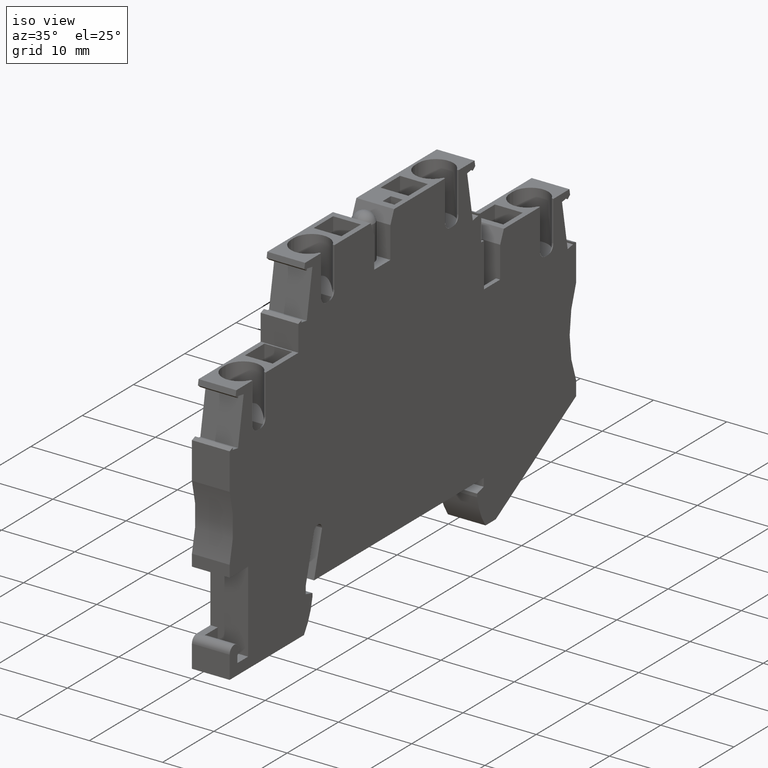
[diagram: clean part render]
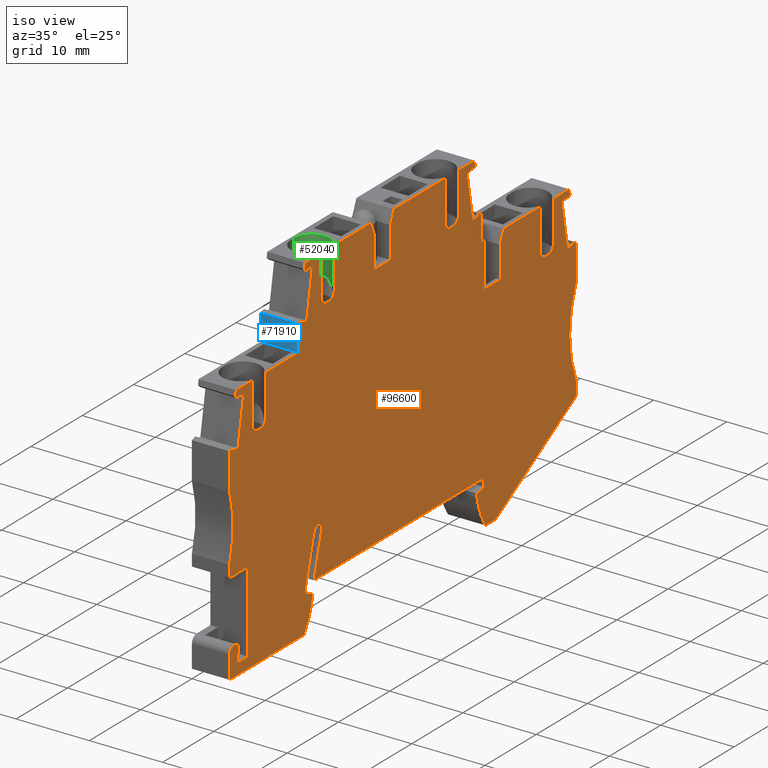
[diagram: same view with three faces highlighted in distinct colors, each labeled with its STEP entity id]
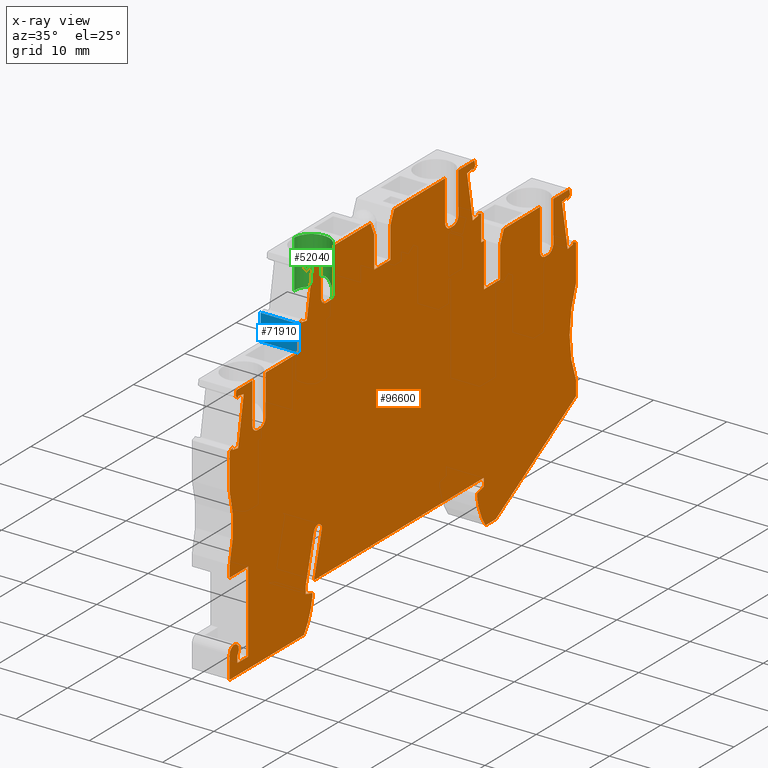
[diagram: x-ray of the same camera — body ghosted, the three highlighted faces saturated]
A machine part, iso view with three faces highlighted in distinct colors.
The next image is the same camera in x-ray (body ghosted, the three faces saturated) — at least one of them is partly hidden behind the body in this view.
Their STEP definitions:

[orange] entity #96600 — the highlighted planar face has unit normal (1, 0, 0).
#6490=CARTESIAN_POINT('',(184.918635451675,25.7467138221752,53.67));
#6500=VERTEX_POINT('',#6490);
#6530=CARTESIAN_POINT('',(184.918635451675,-15.1764489999999,53.67));
#6540=DIRECTION('',(2.692290834716E-15,-1.,0.));
#6550=VECTOR('',#6540,1.);
#6560=LINE('',#6530,#6550);
#6570=CARTESIAN_POINT('',(184.918635451675,31.7467138221735,53.67));
#6580=VERTEX_POINT('',#6570);
#6590=EDGE_CURVE('',#6580,#6500,#6560,.T.);
#9760=CARTESIAN_POINT('',(197.443635451696,25.2467138221744,53.67));
#9770=VERTEX_POINT('',#9760);
#11160=CARTESIAN_POINT('',(196.843635451697,25.2467138221758,53.67));
#11170=VERTEX_POINT('',#11160);
#17270=CARTESIAN_POINT('',(195.843635451697,31.746713822173,53.67));
#17280=VERTEX_POINT('',#17270);
#17360=CARTESIAN_POINT('',(195.843635451698,26.2467138221757,53.67));
#17370=VERTEX_POINT('',#17360);
#17400=CARTESIAN_POINT('',(195.8436354517,2.99671382217021,
53.6700000000001));
#17410=DIRECTION('',(-1.17239551400417E-13,1.,2.77555756285536E-17));
#17420=VECTOR('',#17410,1.);
#17430=LINE('',#17400,#17420);
#17440=EDGE_CURVE('',#17370,#17280,#17430,.T.);
#17990=CARTESIAN_POINT('',(14.196323,-44.3347945523262,53.67));
#18000=DIRECTION('',(0.965925826289086,0.258819045102457,0.));
#18010=VECTOR('',#18000,1.);
#18020=LINE('',#17990,#18010);
#18030=CARTESIAN_POINT('',(183.568635760428,1.04837987200994,53.67));
#18040=VERTEX_POINT('',#18030);
#18050=CARTESIAN_POINT('',(184.868635760428,1.39671382217034,53.67));
#18060=VERTEX_POINT('',#18050);
#18070=EDGE_CURVE('',#18040,#18060,#18020,.T.);
#18370=CARTESIAN_POINT('',(184.868635760428,-15.1764489999999,53.67));
#18380=DIRECTION('',(6.93889390390723E-17,1.,0.));
#18390=VECTOR('',#18380,1.);
#18400=LINE('',#18370,#18390);
#18410=CARTESIAN_POINT('',(184.868635760428,2.49671382217025,53.67));
#18420=VERTEX_POINT('',#18410);
#18430=EDGE_CURVE('',#18060,#18420,#18400,.T.);
#18680=CARTESIAN_POINT('',(14.196323,2.49671382217026,53.67));
#18690=DIRECTION('',(-1.,6.93889390390723E-17,0.));
#18700=VECTOR('',#18690,1.);
#18710=LINE('',#18680,#18700);
#18720=CARTESIAN_POINT('',(151.768635760428,2.49671382217025,53.67));
#18730=VERTEX_POINT('',#18720);
#18740=EDGE_CURVE('',#18420,#18730,#18710,.T.);
#18990=CARTESIAN_POINT('',(183.568635760417,-15.1764489999999,53.67));
#19000=DIRECTION('',(6.90295043348499E-13,1.,0.));
#19010=VECTOR('',#19000,1.);
#19020=LINE('',#18990,#19010);
#19030=CARTESIAN_POINT('',(183.568635760428,0.596713822169844,53.67));
#19040=VERTEX_POINT('',#19030);
#19050=EDGE_CURVE('',#19040,#18040,#19020,.T.);
#19300=CARTESIAN_POINT('',(192.962608439804,2.01208561046785,53.67));
#19310=DIRECTION('',(0.,0.,-1.));
#19320=DIRECTION('',(-1.,6.93889390390723E-17,0.));
#19330=AXIS2_PLACEMENT_3D('',#19300,#19310,#19320);
#19340=CIRCLE('',#19330,9.499999999999);
#19350=CARTESIAN_POINT('',(185.22757941356,-3.50328617782974,53.67));
#19360=VERTEX_POINT('',#19350);
#19370=EDGE_CURVE('',#19360,#19040,#19340,.T.);
#19620=CARTESIAN_POINT('',(14.196323,-3.50328617781982,53.67));
#19630=DIRECTION('',(-1.,5.79813974610488E-14,0.));
#19640=VECTOR('',#19630,1.);
#19650=LINE('',#19620,#19640);
#19660=CARTESIAN_POINT('',(187.212776734527,-3.50328617782985,53.67));
#19670=VERTEX_POINT('',#19660);
#19680=EDGE_CURVE('',#19670,#19360,#19650,.T.);
#19930=CARTESIAN_POINT('',(14.196323,-105.174575611719,53.67));
#19940=DIRECTION('',(-0.862158641431198,-0.5066384085376,0.));
#19950=VECTOR('',#19940,1.);
#19960=LINE('',#19930,#19950);
#19970=CARTESIAN_POINT('',(202.868635760428,5.69671382217545,53.67));
#19980=VERTEX_POINT('',#19970);
#19990=EDGE_CURVE('',#19980,#19670,#19960,.T.);
#20240=CARTESIAN_POINT('',(202.868635760428,-15.1764489999999,53.67));
#20250=DIRECTION('',(-1.3062127899644E-16,-1.,0.));
#20260=VECTOR('',#20250,1.);
#20270=LINE('',#20240,#20260);
#20280=CARTESIAN_POINT('',(202.868635760428,7.69671382216893,53.67));
#20290=VERTEX_POINT('',#20280);
#20300=EDGE_CURVE('',#20290,#19980,#20270,.T.);
#20550=CARTESIAN_POINT('',(216.616362845295,13.696713822169,53.67));
#20560=DIRECTION('',(0.,0.,1.));
#20570=DIRECTION('',(1.,-6.93889390390723E-17,0.));
#20580=AXIS2_PLACEMENT_3D('',#20550,#20560,#20570);
#20590=CIRCLE('',#20580,15.);
#20600=CARTESIAN_POINT('',(202.86863574573,19.6967137884929,53.67));
#20610=VERTEX_POINT('',#20600);
#20620=EDGE_CURVE('',#20610,#20290,#20590,.T.);
#20870=CARTESIAN_POINT('',(202.86863574573,-15.1764489999999,53.67));
#20880=DIRECTION('',(-6.93889390390723E-17,-1.,0.));
#20890=VECTOR('',#20880,1.);
#20900=LINE('',#20870,#20890);
#20910=CARTESIAN_POINT('',(202.86863574573,24.7030731418167,53.67));
#20920=VERTEX_POINT('',#20910);
#20930=EDGE_CURVE('',#20920,#20610,#20900,.T.);
#21180=CARTESIAN_POINT('',(14.196323,93.3741790099297,53.67));
#21190=DIRECTION('',(0.939692620788304,-0.342020143319087,0.));
#21200=VECTOR('',#21190,1.);
#21210=LINE('',#21180,#21200);
#21220=CARTESIAN_POINT('',(202.235827724333,24.9333964256054,53.67));
#21230=VERTEX_POINT('',#21220);
#21240=EDGE_CURVE('',#21230,#20920,#21210,.T.);
#21490=CARTESIAN_POINT('',(209.308275664955,-15.1764489999999,53.67));
#21500=DIRECTION('',(0.173648177667931,-0.984807753012032,0.));
#21510=VECTOR('',#21500,1.);
#21520=LINE('',#21490,#21510);
#21530=CARTESIAN_POINT('',(202.283113446507,24.6652257691104,53.67));
#21540=VERTEX_POINT('',#21530);
#21550=EDGE_CURVE('',#21230,#21540,#21520,.T.);
#21800=CARTESIAN_POINT('',(14.196323,-8.49955010156946,53.67));
#21810=DIRECTION('',(-0.984807753012117,-0.173648177667446,0.));
#21820=VECTOR('',#21810,1.);
#21830=LINE('',#21800,#21820);
#21840=CARTESIAN_POINT('',(201.229369150783,24.479422219006,53.67));
#21850=VERTEX_POINT('',#21840);
#21860=EDGE_CURVE('',#21540,#21850,#21830,.T.);
#22110=CARTESIAN_POINT('',(208.221769190198,-15.1764489999999,53.67));
#22120=DIRECTION('',(0.17364817766702,-0.984807753012192,0.));
#22130=VECTOR('',#22120,1.);
#22140=LINE('',#22110,#22130);
#22150=CARTESIAN_POINT('',(200.131044427039,30.7083312568086,53.67));
#22160=VERTEX_POINT('',#22150);
#22170=EDGE_CURVE('',#22160,#21850,#22140,.T.);
#22420=CARTESIAN_POINT('',(209.308275664883,-15.1764489999999,53.67));
#22430=DIRECTION('',(0.173648177666326,-0.984807753012315,0.));
#22440=VECTOR('',#22430,1.);
#22450=LINE('',#22420,#22440);
#22460=CARTESIAN_POINT('',(201.184788722763,30.8941348069122,53.67));
#22470=VERTEX_POINT('',#22460);
#22480=CARTESIAN_POINT('',(201.232074444938,30.625964150414,53.67));
#22490=VERTEX_POINT('',#22480);
#22500=EDGE_CURVE('',#22470,#22490,#22450,.T.);
#22800=CARTESIAN_POINT('',(14.196323,-2.07697678126756,53.67));
#22810=DIRECTION('',(0.984807753012229,0.173648177666812,0.));
#22820=VECTOR('',#22810,1.);
#22830=LINE('',#22800,#22820);
#22840=EDGE_CURVE('',#22160,#22470,#22830,.T.);
#23040=CARTESIAN_POINT('',(14.196323,-126.315665903762,53.67));
#23050=DIRECTION('',(-0.766044443119454,-0.642787609685972,0.));
#23060=VECTOR('',#23050,1.);
#23070=LINE('',#23040,#23060);
#23080=CARTESIAN_POINT('',(201.70088696831,31.0193445658665,53.67));
#23090=VERTEX_POINT('',#23080);
#23100=EDGE_CURVE('',#23090,#22490,#23070,.T.);
#23350=CARTESIAN_POINT('',(209.846451769164,-15.1764489999999,53.67));
#23360=DIRECTION('',(0.173648177665959,-0.984807753012379,0.));
#23370=VECTOR('',#23360,1.);
#23380=LINE('',#23350,#23370);
#23390=CARTESIAN_POINT('',(201.572632143486,31.7467138221736,53.67));
#23400=VERTEX_POINT('',#23390);
#23410=EDGE_CURVE('',#23400,#23090,#23380,.T.);
#24000=CARTESIAN_POINT('',(14.196323,31.7467138221519,53.67));
#24010=DIRECTION('',(1.,1.15435438985401E-13,0.));
#24020=VECTOR('',#24010,1.);
#24030=LINE('',#24000,#24020);
#24040=CARTESIAN_POINT('',(198.443635451697,31.746713822173,53.67));
#24050=VERTEX_POINT('',#24040);
#24060=EDGE_CURVE('',#24050,#23400,#24030,.T.);
#24330=CARTESIAN_POINT('',(188.787135479711,31.7467138221721,53.67));
#24340=VERTEX_POINT('',#24330);
#24350=EDGE_CURVE('',#24340,#17280,#24030,.T.);
#26030=CARTESIAN_POINT('',(168.955206470576,-15.1764489999999,53.67));
#26040=DIRECTION('',(-0.389303997086923,-0.921109330021222,0.));
#26050=VECTOR('',#26040,1.);
#26060=LINE('',#26030,#26050);
#26070=CARTESIAN_POINT('',(188.068635451695,30.0467130916932,53.67));
#26080=VERTEX_POINT('',#26070);
#26090=EDGE_CURVE('',#24340,#26080,#26060,.T.);
#26340=CARTESIAN_POINT('',(188.068635451695,-15.1764489999999,53.67));
#26350=DIRECTION('',(-9.18709552877317E-15,1.,0.));
#26360=VECTOR('',#26350,1.);
#26370=LINE('',#26340,#26360);
#26380=CARTESIAN_POINT('',(188.068635451695,25.7467138221752,53.67));
#26390=VERTEX_POINT('',#26380);
#26400=EDGE_CURVE('',#26390,#26080,#26370,.T.);
#26840=CARTESIAN_POINT('',(168.644442103639,25.2467138221718,53.67));
#26850=DIRECTION('',(1.,8.9848551017661E-14,0.));
#26860=VECTOR('',#26850,1.);
#26870=LINE('',#26840,#26860);
#26880=EDGE_CURVE('',#11170,#9770,#26870,.T.);
#27650=CARTESIAN_POINT('',(178.94363545168,35.8467138221694,53.67));
#27660=VERTEX_POINT('',#27650);
#28950=CARTESIAN_POINT('',(179.943635451681,2.99671382217021,53.67));
#28960=DIRECTION('',(-7.24420523566576E-15,1.,0.));
#28970=VECTOR('',#28960,1.);
#28980=LINE('',#28950,#28970);
#28990=CARTESIAN_POINT('',(179.943635451681,36.8467138221695,
53.6699999999999));
#29000=VERTEX_POINT('',#28990);
#29010=CARTESIAN_POINT('',(179.94363545168,42.3467138221667,53.67));
#29020=VERTEX_POINT('',#29010);
#29030=EDGE_CURVE('',#29000,#29020,#28980,.T.);
#29300=CARTESIAN_POINT('',(178.943635451681,36.8467138221681,53.67));
#29310=DIRECTION('',(-1.15352172258554E-13,2.7755575615018E-17,-1.));
#29320=DIRECTION('',(-1.,1.09995346164751E-13,1.15352172258554E-13));
#29330=AXIS2_PLACEMENT_3D('',#29300,#29310,#29320);
#29340=CIRCLE('',#29330,1.);
#29350=EDGE_CURVE('',#29000,#27660,#29340,.T.);
#30430=CARTESIAN_POINT('',(178.34363545168,35.8467138221694,53.67));
#30440=VERTEX_POINT('',#30430);
#39650=CARTESIAN_POINT('',(168.644442103639,35.8467138221671,53.67));
#39660=DIRECTION('',(1.,8.9848551017661E-14,0.));
#39670=VECTOR('',#39660,1.);
#39680=LINE('',#39650,#39670);
#39690=EDGE_CURVE('',#30440,#27660,#39680,.T.);
#39930=CARTESIAN_POINT('',(177.34363545168,42.3467138221667,53.67));
#39940=VERTEX_POINT('',#39930);
#40020=CARTESIAN_POINT('',(177.343635451681,36.8467138221693,53.67));
#40030=VERTEX_POINT('',#40020);
#40060=CARTESIAN_POINT('',(177.343635451685,2.99671382217021,
53.6700000000001));
#40070=DIRECTION('',(-1.17239551400417E-13,1.,2.77555756285536E-17));
#40080=VECTOR('',#40070,1.);
#40090=LINE('',#40060,#40080);
#40100=EDGE_CURVE('',#40030,#39940,#40090,.T.);
#40220=CARTESIAN_POINT('',(178.343635451681,36.8467138221694,53.67));
#40230=DIRECTION('',(0.,0.,1.));
#40240=DIRECTION('',(1.,0.,0.));
#40250=AXIS2_PLACEMENT_3D('',#40220,#40230,#40240);
#40260=CIRCLE('',#40250,1.);
#40270=EDGE_CURVE('',#40030,#30440,#40260,.T.);
#41170=CARTESIAN_POINT('',(193.215517764735,-15.1764489999999,53.67));
#41180=DIRECTION('',(0.173648177667472,-0.984807753012113,0.));
#41190=VECTOR('',#41180,1.);
#41200=LINE('',#41170,#41190);
#41210=CARTESIAN_POINT('',(183.072632143469,42.3467138221672,53.67));
#41220=VERTEX_POINT('',#41210);
#41230=CARTESIAN_POINT('',(183.200886968294,41.6193445658591,53.67));
#41240=VERTEX_POINT('',#41230);
#41250=EDGE_CURVE('',#41220,#41240,#41200,.T.);
#41550=CARTESIAN_POINT('',(192.677341660368,-15.1764489999999,53.67));
#41560=DIRECTION('',(0.173648177666326,-0.984807753012315,0.));
#41570=VECTOR('',#41560,1.);
#41580=LINE('',#41550,#41570);
#41590=CARTESIAN_POINT('',(182.684788722746,41.4941348069045,53.67));
#41600=VERTEX_POINT('',#41590);
#41610=CARTESIAN_POINT('',(182.732074444921,41.2259641504061,53.67));
#41620=VERTEX_POINT('',#41610);
#41630=EDGE_CURVE('',#41600,#41620,#41580,.T.);
#41930=CARTESIAN_POINT('',(191.590835185692,-15.1764489999999,53.67));
#41940=DIRECTION('',(0.173648177667046,-0.984807753012188,0.));
#41950=VECTOR('',#41940,1.);
#41960=LINE('',#41930,#41950);
#41970=CARTESIAN_POINT('',(181.631044427023,41.3083312568009,53.67));
#41980=VERTEX_POINT('',#41970);
#41990=CARTESIAN_POINT('',(182.729369150767,35.0794222189983,53.67));
#42000=VERTEX_POINT('',#41990);
#42010=EDGE_CURVE('',#41980,#42000,#41960,.T.);
#42310=CARTESIAN_POINT('',(14.196323,97.240729676124,53.67));
#42320=DIRECTION('',(0.939692620788329,-0.342020143319018,0.));
#42330=VECTOR('',#42320,1.);
#42340=LINE('',#42310,#42330);
#42350=CARTESIAN_POINT('',(183.735827724316,35.5333964255976,53.67));
#42360=VERTEX_POINT('',#42350);
#42370=CARTESIAN_POINT('',(184.368635726432,35.3030731488271,53.67));
#42380=VERTEX_POINT('',#42370);
#42390=EDGE_CURVE('',#42360,#42380,#42340,.T.);
#42690=CARTESIAN_POINT('',(184.368635726432,31.7467138221735,53.67));
#42700=DIRECTION('',(1.,0.,0.));
#42710=VECTOR('',#42700,1.);
#42720=LINE('',#42690,#42710);
#42730=CARTESIAN_POINT('',(184.368635726432,31.7467138221735,53.67));
#42740=VERTEX_POINT('',#42730);
#42750=EDGE_CURVE('',#42740,#6580,#42720,.T.);
#43000=CARTESIAN_POINT('',(184.368635726432,-15.1764489999999,53.67));
#43010=DIRECTION('',(-5.46784839627889E-15,1.,0.));
#43020=VECTOR('',#43010,1.);
#43030=LINE('',#43000,#43020);
#43040=EDGE_CURVE('',#42740,#42380,#43030,.T.);
#43240=CARTESIAN_POINT('',(192.677341660458,-15.1764489999999,53.67));
#43250=DIRECTION('',(0.173648177667931,-0.984807753012032,0.));
#43260=VECTOR('',#43250,1.);
#43270=LINE('',#43240,#43260);
#43280=CARTESIAN_POINT('',(183.783113446491,35.2652257691028,53.67));
#43290=VERTEX_POINT('',#43280);
#43300=EDGE_CURVE('',#42360,#43290,#43270,.T.);
#43550=CARTESIAN_POINT('',(14.196323,5.36249904154229,53.67));
#43560=DIRECTION('',(-0.984807753012117,-0.173648177667446,0.));
#43570=VECTOR('',#43560,1.);
#43580=LINE('',#43550,#43570);
#43590=EDGE_CURVE('',#43290,#42000,#43580,.T.);
#43790=CARTESIAN_POINT('',(14.196323,11.7850723618319,53.67));
#43800=DIRECTION('',(0.984807753012229,0.173648177666812,0.));
#43810=VECTOR('',#43800,1.);
#43820=LINE('',#43790,#43810);
#43830=EDGE_CURVE('',#41980,#41600,#43820,.T.);
#44030=CARTESIAN_POINT('',(14.196323,-100.192322726944,53.67));
#44040=DIRECTION('',(-0.76604444311958,-0.642787609685822,0.));
#44050=VECTOR('',#44040,1.);
#44060=LINE('',#44030,#44050);
#44070=EDGE_CURVE('',#41240,#41620,#44060,.T.);
#44950=CARTESIAN_POINT('',(14.196323,42.3467138221477,53.67));
#44960=DIRECTION('',(-1.,-1.15435438985401E-13,0.));
#44970=VECTOR('',#44960,1.);
#44980=LINE('',#44950,#44970);
#44990=EDGE_CURVE('',#41220,#29020,#44980,.T.);
#45060=CARTESIAN_POINT('',(167.387135170976,42.3467138221654,53.67));
#45070=VERTEX_POINT('',#45060);
#45080=EDGE_CURVE('',#39940,#45070,#44980,.T.);
#48190=CARTESIAN_POINT('',(143.075149088678,-15.1764489999999,53.67));
#48200=DIRECTION('',(-0.389303997086923,-0.921109330021222,0.));
#48210=VECTOR('',#48200,1.);
#48220=LINE('',#48190,#48210);
#48230=CARTESIAN_POINT('',(166.668635451695,40.6467138221657,53.67));
#48240=VERTEX_POINT('',#48230);
#48250=EDGE_CURVE('',#45070,#48240,#48220,.T.);
#48500=CARTESIAN_POINT('',(166.668635451695,-15.1764489999999,53.67));
#48510=DIRECTION('',(-9.18709552877317E-15,1.,0.));
#48520=VECTOR('',#48510,1.);
#48530=LINE('',#48500,#48520);
#48540=CARTESIAN_POINT('',(166.668635451695,36.3467138221752,53.67));
#48550=VERTEX_POINT('',#48540);
#48560=EDGE_CURVE('',#48550,#48240,#48530,.T.);
#48810=CARTESIAN_POINT('',(14.196323,36.3467138221767,53.67));
#48820=DIRECTION('',(-1.,9.92261828258734E-15,0.));
#48830=VECTOR('',#48820,1.);
#48840=LINE('',#48810,#48830);
#48850=CARTESIAN_POINT('',(163.518635451675,36.3467138221752,53.67));
#48860=VERTEX_POINT('',#48850);
#48870=EDGE_CURVE('',#48550,#48860,#48840,.T.);
#49270=CARTESIAN_POINT('',(163.518635451675,-15.1764489999999,53.67));
#49280=DIRECTION('',(2.692290834716E-15,-1.,0.));
#49290=VECTOR('',#49280,1.);
#49300=LINE('',#49270,#49290);
#49310=CARTESIAN_POINT('',(163.518635451675,40.6467138221659,53.67));
#49320=VERTEX_POINT('',#49310);
#49330=EDGE_CURVE('',#49320,#48860,#49300,.T.);
#49580=CARTESIAN_POINT('',(187.112121814692,-15.1764489999999,53.67));
#49590=DIRECTION('',(-0.389303997086923,0.921109330021222,0.));
#49600=VECTOR('',#49590,1.);
#49610=LINE('',#49580,#49600);
#49620=CARTESIAN_POINT('',(162.800135732393,42.3467138221671,53.67));
#49630=VERTEX_POINT('',#49620);
#49640=EDGE_CURVE('',#49320,#49630,#49610,.T.);
#50620=CARTESIAN_POINT('',(154.743635451665,35.8467138221695,53.67));
#50630=VERTEX_POINT('',#50620);
#54110=CARTESIAN_POINT('',(168.644442103639,35.8467138221682,53.67));
#54120=DIRECTION('',(-1.,8.45313655265971E-14,0.));
#54130=VECTOR('',#54120,1.);
#54140=LINE('',#54110,#54130);
#54150=CARTESIAN_POINT('',(154.143635451666,35.8467138221694,53.67));
#54160=VERTEX_POINT('',#54150);
#54170=EDGE_CURVE('',#50630,#54160,#54140,.T.);
#57780=CARTESIAN_POINT('',(155.743635451665,36.8467138221695,
53.6700000000001));
#57790=VERTEX_POINT('',#57780);
#57870=CARTESIAN_POINT('',(155.743635451665,42.3467138221681,
53.6700000000001));
#57880=VERTEX_POINT('',#57870);
#57910=CARTESIAN_POINT('',(155.743635451661,2.99671382217021,
53.6700000000001));
#57920=DIRECTION('',(-1.17239551400417E-13,-1.,-2.77555756291847E-17));
#57930=VECTOR('',#57920,1.);
#57940=LINE('',#57910,#57930);
#57950=EDGE_CURVE('',#57880,#57790,#57940,.T.);
#58090=CARTESIAN_POINT('',(154.743635451665,36.8467138221694,53.67));
#58100=DIRECTION('',(0.,0.,1.));
#58110=DIRECTION('',(1.,0.,0.));
#58120=AXIS2_PLACEMENT_3D('',#58090,#58100,#58110);
#58130=CIRCLE('',#58120,1.);
#58140=EDGE_CURVE('',#50630,#57790,#58130,.T.);
#63990=CARTESIAN_POINT('',(154.143635451665,36.8467138221694,53.67));
#64000=DIRECTION('',(-1.15518705712248E-13,-2.7755575615654E-17,1.));
#64010=DIRECTION('',(1.,1.15504827924453E-13,1.15518705712248E-13));
#64020=AXIS2_PLACEMENT_3D('',#63990,#64000,#64010);
#64030=CIRCLE('',#64020,1.);
#64040=CARTESIAN_POINT('',(153.143635451665,36.8467138221695,
53.6699999999999));
#64050=VERTEX_POINT('',#64040);
#64060=EDGE_CURVE('',#64050,#54160,#64030,.T.);
#64320=CARTESIAN_POINT('',(153.143635451665,2.99671382217021,53.67));
#64330=DIRECTION('',(1.73472347596343E-15,1.,0.));
#64340=VECTOR('',#64330,1.);
#64350=LINE('',#64320,#64340);
#64360=CARTESIAN_POINT('',(153.143635451665,42.3467138221681,53.67));
#64370=VERTEX_POINT('',#64360);
#64380=EDGE_CURVE('',#64050,#64370,#64350,.T.);
#65500=CARTESIAN_POINT('',(138.918635451691,-2.00328617783004,53.67));
#65510=VERTEX_POINT('',#65500);
#65540=CARTESIAN_POINT('',(14.196323,-2.00328617783003,53.67));
#65550=DIRECTION('',(1.,-6.93889390390723E-17,0.));
#65560=VECTOR('',#65550,1.);
#65570=LINE('',#65540,#65560);
#65580=CARTESIAN_POINT('',(136.818635451693,-2.00328617783004,53.67));
#65590=VERTEX_POINT('',#65580);
#65600=EDGE_CURVE('',#65590,#65510,#65570,.T.);
#65840=CARTESIAN_POINT('',(138.918635451691,-15.1764489999999,53.67));
#65850=DIRECTION('',(6.93889390390723E-17,1.,0.));
#65860=VECTOR('',#65850,1.);
#65870=LINE('',#65840,#65860);
#65880=CARTESIAN_POINT('',(138.918635451691,9.09671382217083,53.67));
#65890=VERTEX_POINT('',#65880);
#65900=EDGE_CURVE('',#65510,#65890,#65870,.T.);
#66170=CARTESIAN_POINT('',(135.318635760428,-15.1764489999999,53.67));
#66180=DIRECTION('',(-1.98452365651747E-15,1.,0.));
#66190=VECTOR('',#66180,1.);
#66200=LINE('',#66170,#66190);
#66210=CARTESIAN_POINT('',(135.318635760428,9.09671382217083,53.67));
#66220=VERTEX_POINT('',#66210);
#66230=CARTESIAN_POINT('',(135.318635760428,10.696713822169,53.67));
#66240=VERTEX_POINT('',#66230);
#66250=EDGE_CURVE('',#66220,#66240,#66200,.T.);
#66550=CARTESIAN_POINT('',(135.318635774393,-15.1764489999999,53.67));
#66560=DIRECTION('',(6.93889390390723E-17,1.,0.));
#66570=VECTOR('',#66560,1.);
#66580=LINE('',#66550,#66570);
#66590=CARTESIAN_POINT('',(135.318635774393,19.6967137777627,53.67));
#66600=VERTEX_POINT('',#66590);
#66610=CARTESIAN_POINT('',(135.318635774393,24.7030733168879,53.67));
#66620=VERTEX_POINT('',#66610);
#66630=EDGE_CURVE('',#66600,#66620,#66580,.T.);
#66930=CARTESIAN_POINT('',(128.878995547148,-15.1764489999999,53.67));
#66940=DIRECTION('',(0.173648177667931,0.984807753012032,0.));
#66950=VECTOR('',#66940,1.);
#66960=LINE('',#66930,#66950);
#66970=CARTESIAN_POINT('',(135.904157756286,24.6652257163141,53.67));
#66980=VERTEX_POINT('',#66970);
#66990=CARTESIAN_POINT('',(135.951443499635,24.9333964928844,53.67));
#67000=VERTEX_POINT('',#66990);
#67010=EDGE_CURVE('',#66980,#67000,#66960,.T.);
#67310=CARTESIAN_POINT('',(129.96550171317,-15.1764489999999,53.67));
#67320=DIRECTION('',(0.173648177667023,0.984807753012192,0.));
#67330=VECTOR('',#67320,1.);
#67340=LINE('',#67310,#67330);
#67350=CARTESIAN_POINT('',(136.957901752586,24.4794222190064,53.67));
#67360=VERTEX_POINT('',#67350);
#67370=CARTESIAN_POINT('',(138.056226476329,30.7083312568075,53.67));
#67380=VERTEX_POINT('',#67370);
#67390=EDGE_CURVE('',#67360,#67380,#67340,.T.);
#67690=CARTESIAN_POINT('',(14.196323,133.632889532351,53.67));
#67700=DIRECTION('',(-0.766044443119474,0.642787609685948,0.));
#67710=VECTOR('',#67700,1.);
#67720=LINE('',#67690,#67710);
#67730=CARTESIAN_POINT('',(136.955196718064,30.6259638719466,53.67));
#67740=VERTEX_POINT('',#67730);
#67750=CARTESIAN_POINT('',(136.486383925749,31.0193445130692,53.67));
#67760=VERTEX_POINT('',#67750);
#67770=EDGE_CURVE('',#67740,#67760,#67720,.T.);
#68070=CARTESIAN_POINT('',(14.196323,31.746713822177,53.67));
#68080=DIRECTION('',(-1.,1.15574216863479E-13,0.));
#68090=VECTOR('',#68080,1.);
#68100=LINE('',#68070,#68090);
#68110=CARTESIAN_POINT('',(148.718635176939,31.7467138221615,53.67));
#68120=VERTEX_POINT('',#68110);
#68130=CARTESIAN_POINT('',(142.343635451664,31.7467138221623,53.67));
#68140=VERTEX_POINT('',#68130);
#68150=EDGE_CURVE('',#68120,#68140,#68100,.T.);
#68550=CARTESIAN_POINT('',(139.743635451664,31.7467138221623,53.67));
#68560=VERTEX_POINT('',#68550);
#68590=CARTESIAN_POINT('',(136.614638759881,31.7467138221629,53.67));
#68600=VERTEX_POINT('',#68590);
#68610=EDGE_CURVE('',#68560,#68600,#68100,.T.);
#69250=CARTESIAN_POINT('',(14.196323,-13.6590443271737,53.67));
#69260=DIRECTION('',(0.939692620788304,0.342020143319087,0.));
#69270=VECTOR('',#69260,1.);
#69280=LINE('',#69250,#69270);
#69290=CARTESIAN_POINT('',(148.718635176939,35.3030731488308,53.67));
#69300=VERTEX_POINT('',#69290);
#69310=CARTESIAN_POINT('',(149.351443179055,35.5333964256018,53.67));
#69320=VERTEX_POINT('',#69310);
#69330=EDGE_CURVE('',#69300,#69320,#69280,.T.);
#69630=CARTESIAN_POINT('',(141.496435717659,-15.1764489999999,53.67));
#69640=DIRECTION('',(0.173648177667041,0.984807753012189,0.));
#69650=VECTOR('',#69640,1.);
#69660=LINE('',#69630,#69650);
#69670=CARTESIAN_POINT('',(150.357901752584,35.0794222189994,53.67));
#69680=VERTEX_POINT('',#69670);
#69690=CARTESIAN_POINT('',(151.456226476328,41.3083312568005,53.67));
#69700=VERTEX_POINT('',#69690);
#69710=EDGE_CURVE('',#69680,#69700,#69660,.T.);
#70010=CARTESIAN_POINT('',(14.196323,155.476824650563,53.67));
#70020=DIRECTION('',(-0.766044443119871,0.642787609685476,0.));
#70030=VECTOR('',#70020,1.);
#70040=LINE('',#70010,#70030);
#70050=CARTESIAN_POINT('',(150.355196458447,41.2259641503885,53.67));
#70060=VERTEX_POINT('',#70050);
#70070=CARTESIAN_POINT('',(149.886383935057,41.6193445658553,53.67));
#70080=VERTEX_POINT('',#70070);
#70090=EDGE_CURVE('',#70060,#70080,#70040,.T.);
#70390=CARTESIAN_POINT('',(139.871753138634,-15.1764489999999,53.67));
#70400=DIRECTION('',(0.173648177667169,0.984807753012166,0.));
#70410=VECTOR('',#70400,1.);
#70420=LINE('',#70390,#70410);
#70430=CARTESIAN_POINT('',(150.014638759883,42.3467138221686,53.67));
#70440=VERTEX_POINT('',#70430);
#70450=EDGE_CURVE('',#70080,#70440,#70420,.T.);
#70700=CARTESIAN_POINT('',(140.409929243003,-15.1764489999999,53.67));
#70710=DIRECTION('',(0.173648177666326,0.984807753012315,0.));
#70720=VECTOR('',#70710,1.);
#70730=LINE('',#70700,#70720);
#70740=CARTESIAN_POINT('',(150.402482180624,41.4941348069007,53.67));
#70750=VERTEX_POINT('',#70740);
#70760=EDGE_CURVE('',#70060,#70750,#70730,.T.);
#71010=CARTESIAN_POINT('',(14.196323,65.5109556090998,53.67));
#71020=DIRECTION('',(0.984807753012229,-0.173648177666812,0.));
#71030=VECTOR('',#71020,1.);
#71040=LINE('',#71010,#71030);
#71050=EDGE_CURVE('',#70750,#69700,#71040,.T.);
#71250=CARTESIAN_POINT('',(14.196323,59.0883822890139,53.67));
#71260=DIRECTION('',(-0.984807753012117,0.173648177667446,0.));
#71270=VECTOR('',#71260,1.);
#71280=LINE('',#71250,#71270);
#71290=CARTESIAN_POINT('',(149.30415745688,35.2652257691004,53.67));
#71300=VERTEX_POINT('',#71290);
#71310=EDGE_CURVE('',#69680,#71300,#71280,.T.);
#71560=CARTESIAN_POINT('',(140.409929242913,-15.1764489999999,53.67));
#71570=DIRECTION('',(0.173648177667931,0.984807753012032,0.));
#71580=VECTOR('',#71570,1.);
#71590=LINE('',#71560,#71580);
#71600=EDGE_CURVE('',#71300,#69320,#71590,.T.);
#71800=CARTESIAN_POINT('',(148.718635176939,-15.1764489999999,53.67));
#71810=DIRECTION('',(6.93889390390723E-17,1.,0.));
#71820=VECTOR('',#71810,1.);
#71830=LINE('',#71800,#71820);
#71840=EDGE_CURVE('',#68120,#69300,#71830,.T.);
#72970=CARTESIAN_POINT('',(140.743635451665,25.2467138221638,53.67));
#72980=VERTEX_POINT('',#72970);
#73330=CARTESIAN_POINT('',(140.743635451663,26.2467138221637,53.67));
#73340=DIRECTION('',(-1.15518705712248E-13,-2.7755575615654E-17,1.));
#73350=DIRECTION('',(1.,1.15504827924453E-13,1.15518705712248E-13));
#73360=AXIS2_PLACEMENT_3D('',#73330,#73340,#73350);
#73370=CIRCLE('',#73360,1.);
#73380=CARTESIAN_POINT('',(139.743635451663,26.2467138221639,
53.6699999999999));
#73390=VERTEX_POINT('',#73380);
#73400=EDGE_CURVE('',#73390,#72980,#73370,.T.);
#73660=CARTESIAN_POINT('',(139.743635451663,2.99671382217021,53.67));
#73670=DIRECTION('',(1.73472347596343E-15,1.,0.));
#73680=VECTOR('',#73670,1.);
#73690=LINE('',#73660,#73680);
#73700=EDGE_CURVE('',#73390,#68560,#73690,.T.);
#74260=CARTESIAN_POINT('',(141.343635451664,25.2467138221638,
53.6699999999996));
#74270=VERTEX_POINT('',#74260);
#84340=CARTESIAN_POINT('',(168.644442103639,25.2467138221621,53.67));
#84350=DIRECTION('',(-1.,8.45313655265971E-14,0.));
#84360=VECTOR('',#84350,1.);
#84370=LINE('',#84340,#84360);
#84380=EDGE_CURVE('',#74270,#72980,#84370,.T.);
#85200=CARTESIAN_POINT('',(142.343635451661,2.99671382217021,
53.6699999999997));
#85210=DIRECTION('',(-1.17239551400417E-13,-1.,-2.77555756291847E-17));
#85220=VECTOR('',#85210,1.);
#85230=LINE('',#85200,#85220);
#85240=CARTESIAN_POINT('',(142.343635451663,26.2467138221638,
53.6699999999997));
#85250=VERTEX_POINT('',#85240);
#85260=EDGE_CURVE('',#68140,#85250,#85230,.T.);
#85470=CARTESIAN_POINT('',(141.343635451663,26.2467138221638,
53.6699999999996));
#85480=DIRECTION('',(0.,0.,1.));
#85490=DIRECTION('',(1.,0.,0.));
#85500=AXIS2_PLACEMENT_3D('',#85470,#85480,#85490);
#85510=CIRCLE('',#85500,1.);
#85520=EDGE_CURVE('',#74270,#85250,#85510,.T.);
#87120=CARTESIAN_POINT('',(128.340819134138,-15.1764489999999,53.67));
#87130=DIRECTION('',(0.173648177667334,0.984807753012137,0.));
#87140=VECTOR('',#87130,1.);
#87150=LINE('',#87120,#87140);
#87160=EDGE_CURVE('',#67760,#68600,#87150,.T.);
#87360=CARTESIAN_POINT('',(128.87899554722,-15.1764489999999,53.67));
#87370=DIRECTION('',(0.173648177666326,0.984807753012315,0.));
#87380=VECTOR('',#87370,1.);
#87390=LINE('',#87360,#87380);
#87400=CARTESIAN_POINT('',(137.002482480031,30.8941347541144,53.67));
#87410=VERTEX_POINT('',#87400);
#87420=EDGE_CURVE('',#67740,#87410,#87390,.T.);
#87670=CARTESIAN_POINT('',(14.196323,52.5481740676152,53.67));
#87680=DIRECTION('',(0.984807753012229,-0.173648177666812,0.));
#87690=VECTOR('',#87680,1.);
#87700=LINE('',#87670,#87690);
#87710=EDGE_CURVE('',#87410,#67380,#87700,.T.);
#87910=CARTESIAN_POINT('',(14.196323,46.1256007475204,53.67));
#87920=DIRECTION('',(-0.984807753012117,0.173648177667446,0.));
#87930=VECTOR('',#87920,1.);
#87940=LINE('',#87910,#87930);
#87950=EDGE_CURVE('',#67360,#66980,#87940,.T.);
#88150=CARTESIAN_POINT('',(14.196323,-19.3818432374781,53.67));
#88160=DIRECTION('',(0.939692620788387,0.342020143318859,0.));
#88170=VECTOR('',#88160,1.);
#88180=LINE('',#88150,#88170);
#88190=EDGE_CURVE('',#66620,#67000,#88180,.T.);
#88390=CARTESIAN_POINT('',(121.009547739174,15.1967138221689,53.67));
#88400=DIRECTION('',(0.,0.,1.));
#88410=DIRECTION('',(1.,-6.93889390390723E-17,0.));
#88420=AXIS2_PLACEMENT_3D('',#88390,#88400,#88410);
#88430=CIRCLE('',#88420,15.);
#88440=EDGE_CURVE('',#66240,#66600,#88430,.T.);
#88640=CARTESIAN_POINT('',(14.196323,9.09671382217084,53.67));
#88650=DIRECTION('',(-1.,6.93889390390723E-17,0.));
#88660=VECTOR('',#88650,1.);
#88670=LINE('',#88640,#88660);
#88680=EDGE_CURVE('',#65890,#66220,#88670,.T.);
#88890=CARTESIAN_POINT('',(136.818635451721,-15.1764489999999,53.67));
#88900=DIRECTION('',(2.11907767086759E-12,-1.,0.));
#88910=VECTOR('',#88900,1.);
#88920=LINE('',#88890,#88910);
#88930=CARTESIAN_POINT('',(136.818635451691,-1.0741065710802,53.67));
#88940=VERTEX_POINT('',#88930);
#88950=EDGE_CURVE('',#88940,#65590,#88920,.T.);
#89210=CARTESIAN_POINT('',(136.218635451692,-0.403286177829942,53.67));
#89220=DIRECTION('',(0.,0.,1.));
#89230=DIRECTION('',(1.,-6.93889390390723E-17,0.));
#89240=AXIS2_PLACEMENT_3D('',#89210,#89220,#89230);
#89250=CIRCLE('',#89240,0.89999999999984);
#89260=CARTESIAN_POINT('',(135.318635451692,-0.403286177829941,53.67));
#89270=VERTEX_POINT('',#89260);
#89280=EDGE_CURVE('',#88940,#89270,#89250,.T.);
#89530=CARTESIAN_POINT('',(135.318635451686,-15.1764489999999,53.67));
#89540=DIRECTION('',(3.85792588351647E-13,1.,0.));
#89550=VECTOR('',#89540,1.);
#89560=LINE('',#89530,#89550);
#89570=CARTESIAN_POINT('',(135.318635451691,-3.50328617783001,53.67));
#89580=VERTEX_POINT('',#89570);
#89590=EDGE_CURVE('',#89580,#89270,#89560,.T.);
#89840=CARTESIAN_POINT('',(142.074663081051,2.01208561046785,53.67));
#89850=DIRECTION('',(0.,0.,1.));
#89860=DIRECTION('',(1.,-6.93889390390723E-17,0.));
#89870=AXIS2_PLACEMENT_3D('',#89840,#89850,#89860);
#89880=CIRCLE('',#89870,9.49999999999899);
#89890=CARTESIAN_POINT('',(149.809692107295,-3.50328617782979,53.67));
#89900=VERTEX_POINT('',#89890);
#89910=CARTESIAN_POINT('',(151.468635760428,0.596713822169507,53.67));
#89920=VERTEX_POINT('',#89910);
#89930=EDGE_CURVE('',#89900,#89920,#89880,.T.);
#90230=CARTESIAN_POINT('',(151.468635760438,-15.1764489999999,53.67));
#90240=DIRECTION('',(6.29194409844522E-13,-1.,0.));
#90250=VECTOR('',#90240,1.);
#90260=LINE('',#90230,#90250);
#90270=CARTESIAN_POINT('',(151.468635760427,1.04837987200994,53.67));
#90280=VERTEX_POINT('',#90270);
#90290=EDGE_CURVE('',#90280,#89920,#90260,.T.);
#90540=CARTESIAN_POINT('',(14.196323,37.8303852193346,53.67));
#90550=DIRECTION('',(0.965925826289041,-0.258819045102623,0.));
#90560=VECTOR('',#90550,1.);
#90570=LINE('',#90540,#90560);
#90580=CARTESIAN_POINT('',(150.168635760428,1.39671382217036,53.67));
#90590=VERTEX_POINT('',#90580);
#90600=EDGE_CURVE('',#90590,#90280,#90570,.T.);
#90850=CARTESIAN_POINT('',(150.168635760428,-15.1764489999999,53.67));
#90860=DIRECTION('',(-6.93889390390723E-17,-1.,0.));
#90870=VECTOR('',#90860,1.);
#90880=LINE('',#90850,#90870);
#90890=CARTESIAN_POINT('',(150.168635760428,2.4967138221786,53.67));
#90900=VERTEX_POINT('',#90890);
#90910=EDGE_CURVE('',#90900,#90590,#90880,.T.);
#91160=CARTESIAN_POINT('',(145.433126054518,-15.1764489999999,53.67));
#91170=DIRECTION('',(0.258819045102718,0.965925826289016,0.));
#91180=VECTOR('',#91170,1.);
#91190=LINE('',#91160,#91180);
#91200=CARTESIAN_POINT('',(151.778221359825,8.5037690582528,53.67));
#91210=VERTEX_POINT('',#91200);
#91220=EDGE_CURVE('',#90900,#91210,#91190,.T.);
#91510=CARTESIAN_POINT('',(153.346169499709,8.38414988782212,53.67));
#91520=VERTEX_POINT('',#91510);
#91570=CARTESIAN_POINT('',(152.550962020857,8.29671382217025,53.67));
#91580=DIRECTION('',(0.,0.,1.));
#91590=DIRECTION('',(1.,-6.93889390390723E-17,0.));
#91600=AXIS2_PLACEMENT_3D('',#91570,#91580,#91590);
#91610=CIRCLE('',#91600,0.80000000000001);
#91620=EDGE_CURVE('',#91520,#91210,#91610,.T.);
#91790=CARTESIAN_POINT('',(14.196323,-3.50328617783188,53.67));
#91800=DIRECTION('',(-1.,-1.54289738893123E-14,0.));
#91810=VECTOR('',#91800,1.);
#91820=LINE('',#91790,#91810);
#91830=EDGE_CURVE('',#89900,#89580,#91820,.T.);
#92370=CARTESIAN_POINT('',(14.196323,42.3467138221843,53.67));
#92380=DIRECTION('',(-1.,1.15574216863479E-13,0.));
#92390=VECTOR('',#92380,1.);
#92400=LINE('',#92370,#92390);
#92410=EDGE_CURVE('',#49630,#57880,#92400,.T.);
#92480=EDGE_CURVE('',#64370,#70440,#92400,.T.);
#94500=CARTESIAN_POINT('',(14.196323,25.7467138221769,53.67));
#94510=DIRECTION('',(-1.,9.92261828258734E-15,0.));
#94520=VECTOR('',#94510,1.);
#94530=LINE('',#94500,#94520);
#94540=EDGE_CURVE('',#26390,#6500,#94530,.T.);
#95300=CARTESIAN_POINT('',(198.443635451698,27.8169688221702,53.67));
#95310=DIRECTION('',(0.,0.,1.));
#95320=DIRECTION('',(1.,0.,0.));
#95330=AXIS2_PLACEMENT_3D('',#95300,#95310,#95320);
#95340=PLANE('',#95330);
#95350=ORIENTED_EDGE('',*,*,#91620,.F.);
#95360=ORIENTED_EDGE('',*,*,#91220,.T.);
#95370=ORIENTED_EDGE('',*,*,#90910,.F.);
#95380=ORIENTED_EDGE('',*,*,#90600,.F.);
#95390=ORIENTED_EDGE('',*,*,#90290,.F.);
#95400=ORIENTED_EDGE('',*,*,#89930,.T.);
#95410=ORIENTED_EDGE('',*,*,#91830,.F.);
#95420=ORIENTED_EDGE('',*,*,#89590,.F.);
#95430=ORIENTED_EDGE('',*,*,#89280,.T.);
#95440=ORIENTED_EDGE('',*,*,#88950,.F.);
#95450=ORIENTED_EDGE('',*,*,#65600,.F.);
#95460=ORIENTED_EDGE('',*,*,#65900,.F.);
#95470=ORIENTED_EDGE('',*,*,#88680,.F.);
#95480=ORIENTED_EDGE('',*,*,#66250,.F.);
#95490=ORIENTED_EDGE('',*,*,#88440,.F.);
#95500=ORIENTED_EDGE('',*,*,#66630,.F.);
#95510=ORIENTED_EDGE('',*,*,#88190,.F.);
#95520=ORIENTED_EDGE('',*,*,#67010,.T.);
#95530=ORIENTED_EDGE('',*,*,#87950,.T.);
#95540=ORIENTED_EDGE('',*,*,#67390,.F.);
#95550=ORIENTED_EDGE('',*,*,#87710,.T.);
#95560=ORIENTED_EDGE('',*,*,#87420,.T.);
#95570=ORIENTED_EDGE('',*,*,#67770,.F.);
#95580=ORIENTED_EDGE('',*,*,#87160,.F.);
#95590=ORIENTED_EDGE('',*,*,#68610,.T.);
#95600=ORIENTED_EDGE('',*,*,#73700,.T.);
#95610=ORIENTED_EDGE('',*,*,#73400,.F.);
#95620=ORIENTED_EDGE('',*,*,#84380,.T.);
#95630=ORIENTED_EDGE('',*,*,#85520,.F.);
#95640=ORIENTED_EDGE('',*,*,#85260,.T.);
#95650=ORIENTED_EDGE('',*,*,#68150,.T.);
#95660=ORIENTED_EDGE('',*,*,#71840,.F.);
#95670=ORIENTED_EDGE('',*,*,#69330,.F.);
#95680=ORIENTED_EDGE('',*,*,#71600,.T.);
#95690=ORIENTED_EDGE('',*,*,#71310,.T.);
#95700=ORIENTED_EDGE('',*,*,#69710,.F.);
#95710=ORIENTED_EDGE('',*,*,#71050,.T.);
#95720=ORIENTED_EDGE('',*,*,#70760,.T.);
#95730=ORIENTED_EDGE('',*,*,#70090,.F.);
#95740=ORIENTED_EDGE('',*,*,#70450,.F.);
#95750=ORIENTED_EDGE('',*,*,#92480,.T.);
#95760=ORIENTED_EDGE('',*,*,#64380,.T.);
#95770=ORIENTED_EDGE('',*,*,#64060,.F.);
#95780=ORIENTED_EDGE('',*,*,#54170,.T.);
#95790=ORIENTED_EDGE('',*,*,#58140,.F.);
#95800=ORIENTED_EDGE('',*,*,#57950,.T.);
#95810=ORIENTED_EDGE('',*,*,#92410,.T.);
#95820=ORIENTED_EDGE('',*,*,#49640,.T.);
#95830=ORIENTED_EDGE('',*,*,#49330,.F.);
#95840=ORIENTED_EDGE('',*,*,#48870,.T.);
#95850=ORIENTED_EDGE('',*,*,#48560,.F.);
#95860=ORIENTED_EDGE('',*,*,#48250,.T.);
#95870=ORIENTED_EDGE('',*,*,#45080,.T.);
#95880=ORIENTED_EDGE('',*,*,#40100,.T.);
#95890=ORIENTED_EDGE('',*,*,#40270,.F.);
#95900=ORIENTED_EDGE('',*,*,#39690,.F.);
#95910=ORIENTED_EDGE('',*,*,#29350,.T.);
#95920=ORIENTED_EDGE('',*,*,#29030,.F.);
#95930=ORIENTED_EDGE('',*,*,#44990,.T.);
#95940=ORIENTED_EDGE('',*,*,#41250,.F.);
#95950=ORIENTED_EDGE('',*,*,#44070,.F.);
#95960=ORIENTED_EDGE('',*,*,#41630,.T.);
#95970=ORIENTED_EDGE('',*,*,#43830,.T.);
#95980=ORIENTED_EDGE('',*,*,#42010,.F.);
#95990=ORIENTED_EDGE('',*,*,#43590,.T.);
#96000=ORIENTED_EDGE('',*,*,#43300,.T.);
#96010=ORIENTED_EDGE('',*,*,#42390,.F.);
#96020=ORIENTED_EDGE('',*,*,#43040,.T.);
#96030=ORIENTED_EDGE('',*,*,#42750,.F.);
#96040=ORIENTED_EDGE('',*,*,#6590,.F.);
#96050=ORIENTED_EDGE('',*,*,#94540,.T.);
#96060=ORIENTED_EDGE('',*,*,#26400,.F.);
#96070=ORIENTED_EDGE('',*,*,#26090,.T.);
#96080=ORIENTED_EDGE('',*,*,#24350,.F.);
#96090=ORIENTED_EDGE('',*,*,#17440,.T.);
#96100=CARTESIAN_POINT('',(196.843635451698,26.2467138221758,53.67));
#96110=DIRECTION('',(0.,0.,1.));
#96120=DIRECTION('',(1.,0.,0.));
#96130=AXIS2_PLACEMENT_3D('',#96100,#96110,#96120);
#96140=CIRCLE('',#96130,1.);
#96150=EDGE_CURVE('',#17370,#11170,#96140,.T.);
#96160=ORIENTED_EDGE('',*,*,#96150,.F.);
#96170=ORIENTED_EDGE('',*,*,#26880,.F.);
#96180=CARTESIAN_POINT('',(197.443635451697,26.2467138221744,53.67));
#96190=DIRECTION('',(-1.15352172258554E-13,2.7755575615018E-17,-1.));
#96200=DIRECTION('',(-1.,1.09995346164751E-13,1.15352172258554E-13));
#96210=AXIS2_PLACEMENT_3D('',#96180,#96190,#96200);
#96220=CIRCLE('',#96210,1.);
#96230=CARTESIAN_POINT('',(198.443635451697,26.2467138221759,
53.6699999999999));
#96240=VERTEX_POINT('',#96230);
#96250=EDGE_CURVE('',#96240,#9770,#96220,.T.);
#96260=ORIENTED_EDGE('',*,*,#96250,.T.);
#96270=CARTESIAN_POINT('',(198.443635451698,2.99671382217021,53.67));
#96280=DIRECTION('',(-7.24420523566576E-15,1.,0.));
#96290=VECTOR('',#96280,1.);
#96300=LINE('',#96270,#96290);
#96310=EDGE_CURVE('',#96240,#24050,#96300,.T.);
#96320=ORIENTED_EDGE('',*,*,#96310,.F.);
#96330=ORIENTED_EDGE('',*,*,#24060,.F.);
#96340=ORIENTED_EDGE('',*,*,#23410,.F.);
#96350=ORIENTED_EDGE('',*,*,#23100,.F.);
#96360=ORIENTED_EDGE('',*,*,#22500,.T.);
#96370=ORIENTED_EDGE('',*,*,#22840,.T.);
#96380=ORIENTED_EDGE('',*,*,#22170,.F.);
#96390=ORIENTED_EDGE('',*,*,#21860,.T.);
#96400=ORIENTED_EDGE('',*,*,#21550,.T.);
#96410=ORIENTED_EDGE('',*,*,#21240,.F.);
#96420=ORIENTED_EDGE('',*,*,#20930,.F.);
#96430=ORIENTED_EDGE('',*,*,#20620,.F.);
#96440=ORIENTED_EDGE('',*,*,#20300,.F.);
#96450=ORIENTED_EDGE('',*,*,#19990,.F.);
#96460=ORIENTED_EDGE('',*,*,#19680,.F.);
#96470=ORIENTED_EDGE('',*,*,#19370,.F.);
#96480=ORIENTED_EDGE('',*,*,#19050,.F.);
#96490=ORIENTED_EDGE('',*,*,#18070,.F.);
#96500=ORIENTED_EDGE('',*,*,#18430,.F.);
#96510=ORIENTED_EDGE('',*,*,#18740,.F.);
#96520=CARTESIAN_POINT('',(151.902610356643,2.99671382217021,53.67));
#96530=DIRECTION('',(0.25881904510258,0.965925826289053,0.));
#96540=VECTOR('',#96530,1.);
#96550=LINE('',#96520,#96540);
#96560=EDGE_CURVE('',#18730,#91520,#96550,.T.);
#96570=ORIENTED_EDGE('',*,*,#96560,.F.);
#96580=EDGE_LOOP('',(#96570,#96510,#96500,#96490,#96480,#96470,#96460,
#96450,#96440,#96430,#96420,#96410,#96400,#96390,#96380,#96370,#96360,
#96350,#96340,#96330,#96320,#96260,#96170,#96160,#96090,#96080,#96070,
#96060,#96050,#96040,#96030,#96020,#96010,#96000,#95990,#95980,#95970,
#95960,#95950,#95940,#95930,#95920,#95910,#95900,#95890,#95880,#95870,
#95860,#95850,#95840,#95830,#95820,#95810,#95800,#95790,#95780,#95770,
#95760,#95750,#95740,#95730,#95720,#95710,#95700,#95690,#95680,#95670,
#95660,#95650,#95640,#95630,#95620,#95610,#95600,#95590,#95580,#95570,
#95560,#95550,#95540,#95530,#95520,#95510,#95500,#95490,#95480,#95470,
#95460,#95450,#95440,#95430,#95420,#95410,#95400,#95390,#95380,#95370,
#95360,#95350));
#96590=FACE_OUTER_BOUND('',#96580,.T.);
#96600=ADVANCED_FACE('',(#96590),#95340,.T.);

[blue] entity #71910 — the highlighted planar face has unit normal (0, 1, -0).
#3980=CARTESIAN_POINT('',(148.718635176939,35.3030731488308,48.52));
#3990=VERTEX_POINT('',#3980);
#4020=CARTESIAN_POINT('',(148.718635176939,-15.1764489999999,48.52));
#4030=DIRECTION('',(6.93889390390723E-17,1.,0.));
#4040=VECTOR('',#4030,1.);
#4050=LINE('',#4020,#4040);
#4060=CARTESIAN_POINT('',(148.718635176939,31.7467138221615,48.52));
#4070=VERTEX_POINT('',#4060);
#4080=EDGE_CURVE('',#4070,#3990,#4050,.T.);
#68110=CARTESIAN_POINT('',(148.718635176939,31.7467138221615,53.67));
#68120=VERTEX_POINT('',#68110);
#68700=CARTESIAN_POINT('',(148.718635176939,31.7467138221615,53.67));
#68710=DIRECTION('',(0.,0.,-1.));
#68720=VECTOR('',#68710,1.);
#68730=LINE('',#68700,#68720);
#68740=EDGE_CURVE('',#68120,#4070,#68730,.T.);
#69290=CARTESIAN_POINT('',(148.718635176939,35.3030731488308,53.67));
#69300=VERTEX_POINT('',#69290);
#69350=CARTESIAN_POINT('',(148.718635176939,35.3030731488308,53.67));
#69360=DIRECTION('',(0.,0.,1.));
#69370=VECTOR('',#69360,1.);
#69380=LINE('',#69350,#69370);
#69390=EDGE_CURVE('',#3990,#69300,#69380,.T.);
#71750=CARTESIAN_POINT('',(148.718635176939,31.7467138221615,53.67));
#71760=DIRECTION('',(1.,-6.93889390390723E-17,0.));
#71770=DIRECTION('',(-6.93889390390723E-17,-1.,0.));
#71780=AXIS2_PLACEMENT_3D('',#71750,#71760,#71770);
#71790=PLANE('',#71780);
#71800=CARTESIAN_POINT('',(148.718635176939,-15.1764489999999,53.67));
#71810=DIRECTION('',(6.93889390390723E-17,1.,0.));
#71820=VECTOR('',#71810,1.);
#71830=LINE('',#71800,#71820);
#71840=EDGE_CURVE('',#68120,#69300,#71830,.T.);
#71850=ORIENTED_EDGE('',*,*,#71840,.T.);
#71860=ORIENTED_EDGE('',*,*,#68740,.F.);
#71870=ORIENTED_EDGE('',*,*,#4080,.F.);
#71880=ORIENTED_EDGE('',*,*,#69390,.F.);
#71890=EDGE_LOOP('',(#71880,#71870,#71860,#71850));
#71900=FACE_OUTER_BOUND('',#71890,.T.);
#71910=ADVANCED_FACE('',(#71900),#71790,.F.);

[green] entity #52040 — the highlighted cylindrical surface (edge-blend (fillet) strip) has radius 2.4 mm, axis along (0, -0, -1).
#50500=CARTESIAN_POINT('',(154.743635451665,44.501017822169,51.27));
#50510=DIRECTION('',(-1.17239551400417E-13,-1.,0.));
#50520=DIRECTION('',(-1.,1.17239551400417E-13,0.));
#50530=AXIS2_PLACEMENT_3D('',#50500,#50510,#50520);
#50540=CYLINDRICAL_SURFACE('',#50530,2.4);
#50550=CARTESIAN_POINT('',(154.743635451665,35.8467138221698,51.27));
#50560=DIRECTION('',(-8.67361737981714E-16,-1.,-1.38777878079272E-17));
#50570=DIRECTION('',(-1.,8.67361737981714E-16,1.20370621524251E-32));
#50580=AXIS2_PLACEMENT_3D('',#50550,#50560,#50570);
#50590=CIRCLE('',#50580,2.40000000000014);
#50600=CARTESIAN_POINT('',(156.43152076095,35.8467138221698,
52.9761779457901));
#50610=VERTEX_POINT('',#50600);
#50620=CARTESIAN_POINT('',(154.743635451665,35.8467138221695,53.67));
#50630=VERTEX_POINT('',#50620);
#50640=EDGE_CURVE('',#50610,#50630,#50590,.T.);
#50650=ORIENTED_EDGE('',*,*,#50640,.T.);
#50660=CARTESIAN_POINT('',(154.743635451665,32.2270320953817,51.27));
#50670=DIRECTION('',(0.906307787036651,-0.422618261740698,0.));
#50680=DIRECTION('',(-0.422618261740698,-0.906307787036651,
-3.0624889262629E-17));
#50690=AXIS2_PLACEMENT_3D('',#50660,#50670,#50680);
#50700=ELLIPSE('',#50690,5.67888379956604,2.4);
#50710=CARTESIAN_POINT('',(156.431520760951,35.8467138221698,
49.5638220542103));
#50720=VERTEX_POINT('',#50710);
#50730=EDGE_CURVE('',#50720,#50610,#50700,.T.);
#50740=ORIENTED_EDGE('',*,*,#50730,.T.);
#50750=CARTESIAN_POINT('',(154.743635451665,35.8467138221698,51.27));
#50760=DIRECTION('',(-8.67361737981714E-16,-1.,-1.38777878079272E-17));
#50770=DIRECTION('',(-1.,8.67361737981714E-16,1.20370621524251E-32));
#50780=AXIS2_PLACEMENT_3D('',#50750,#50760,#50770);
#50790=CIRCLE('',#50780,2.40000000000014);
#50800=CARTESIAN_POINT('',(154.743635451665,35.8467138221695,48.87));
#50810=VERTEX_POINT('',#50800);
#50820=EDGE_CURVE('',#50810,#50720,#50790,.T.);
#50830=ORIENTED_EDGE('',*,*,#50820,.T.);
#50840=CARTESIAN_POINT('',(154.743635451666,44.501017822169,48.87));
#50850=DIRECTION('',(-1.17239551400417E-13,-1.,-1.38777878145543E-17));
#50860=VECTOR('',#50850,1.);
#50870=LINE('',#50840,#50860);
#50880=CARTESIAN_POINT('',(154.743635451666,42.3467138221681,48.87));
#50890=VERTEX_POINT('',#50880);
#50900=EDGE_CURVE('',#50890,#50810,#50870,.T.);
#50910=ORIENTED_EDGE('',*,*,#50900,.T.);
#50920=CARTESIAN_POINT('',(154.743635451665,42.3467138221681,51.27));
#50930=DIRECTION('',(1.17239551400417E-13,1.,0.));
#50940=DIRECTION('',(-1.,1.17239551400417E-13,0.));
#50950=AXIS2_PLACEMENT_3D('',#50920,#50930,#50940);
#50960=CIRCLE('',#50950,2.4);
#50970=CARTESIAN_POINT('',(155.743635451665,42.346713822168,
53.4517424229271));
#50980=VERTEX_POINT('',#50970);
#50990=EDGE_CURVE('',#50980,#50890,#50960,.T.);
#51000=ORIENTED_EDGE('',*,*,#50990,.T.);
#51010=CARTESIAN_POINT('',(155.743635451665,44.5010178221691,
53.4517424229274));
#51020=DIRECTION('',(-1.73472347596343E-15,-1.,-2.77555756158543E-17));
#51030=VECTOR('',#51020,1.);
#51040=LINE('',#51010,#51030);
#51050=CARTESIAN_POINT('',(155.743635451665,36.8467138221695,
53.4517424229274));
#51060=VERTEX_POINT('',#51050);
#51070=EDGE_CURVE('',#50980,#51060,#51040,.T.);
#51080=ORIENTED_EDGE('',*,*,#51070,.F.);
#51090=CARTESIAN_POINT('',(154.743635451665,36.8467138221694,53.67));
#51100=DIRECTION('',(0.,0.,1.));
#51110=DIRECTION('',(1.,0.,0.));
#51120=AXIS2_PLACEMENT_3D('',#51090,#51100,#51110);
#51130=CYLINDRICAL_SURFACE('',#51120,1.);
#51140=CARTESIAN_POINT('',(154.743635451665,44.5010178221691,51.27));
#51150=DIRECTION('',(-1.73472347596343E-15,-1.,-2.77555756158543E-17));
#51160=DIRECTION('',(-1.,1.73472347596345E-15,-1.15490950136632E-13));
#51170=AXIS2_PLACEMENT_3D('',#51140,#51150,#51160);
#51180=CYLINDRICAL_SURFACE('',#51170,2.4);
#51190=CARTESIAN_POINT('',(154.743635451664,35.8467138221694,53.67));
#51200=CARTESIAN_POINT('',(154.760156884749,35.8467138221694,53.67));
#51210=CARTESIAN_POINT('',(154.776669937245,35.8471235838915,
53.6698291800724));
#51220=CARTESIAN_POINT('',(154.79313976741,35.8479399124568,
53.6694893879163));
#51230=CARTESIAN_POINT('',(154.809609328791,35.8487562276998,
53.6691496013055));
#51240=CARTESIAN_POINT('',(154.826075702635,35.8499810679911,
53.6686400266826));
#51250=CARTESIAN_POINT('',(154.842504754398,35.8516133945858,
53.6679626479529));
#51260=CARTESIAN_POINT('',(154.858933777927,35.8532457183754,
53.6672852703873));
#51270=CARTESIAN_POINT('',(154.87532511371,35.8552855018436,
53.6664401028));
#51280=CARTESIAN_POINT('',(154.89164432527,35.8577277892377,
53.665431771797));
#51290=CARTESIAN_POINT('',(154.907963542039,35.8601700774113,
53.6644234404721));
#51300=CARTESIAN_POINT('',(154.924210280177,35.8630148124851,
53.6632519751285));
#51310=CARTESIAN_POINT('',(154.940351006814,35.8662532210424,
53.661924536929));
#51320=CARTESIAN_POINT('',(154.956497128741,35.8694927120884,
53.6605966550124));
#51330=CARTESIAN_POINT('',(154.972512547157,35.8731198876311,
53.6591152427836));
#51340=CARTESIAN_POINT('',(154.988440534368,35.8771415084752,
53.657482035845));
#51350=CARTESIAN_POINT('',(155.004369480411,35.8811633714123,
53.6558487305909));
#51360=CARTESIAN_POINT('',(155.020204958533,35.8855794703683,
53.654063736291));
#51370=CARTESIAN_POINT('',(155.035917190215,35.8903815654145,
53.652135887247));
#51380=CARTESIAN_POINT('',(155.051629396176,35.8951836525994,
53.6502080413591));
#51390=CARTESIAN_POINT('',(155.067218078864,35.9003716591885,
53.6481373803281));
#51400=CARTESIAN_POINT('',(155.082653922186,35.9059341047828,
53.6459348637213));
#51410=CARTESIAN_POINT('',(155.098089764844,35.911496550138,
53.6437323472091));
#51420=CARTESIAN_POINT('',(155.113372508668,35.9174333383913,
53.6413980240069));
#51430=CARTESIAN_POINT('',(155.128474195386,35.9237299971046,
53.6389447315908));
#51440=CARTESIAN_POINT('',(155.143575903959,35.930026664931,
53.636491435624));
#51450=CARTESIAN_POINT('',(155.158496320103,35.9366830928664,
53.6339192256293));
#51460=CARTESIAN_POINT('',(155.173209596391,35.943682231259,
53.631242481022));
#51470=CARTESIAN_POINT('',(155.187922331244,35.9506811120896,
53.6285658349165));
#51480=CARTESIAN_POINT('',(155.202419566706,35.958016911356,
53.6257867440488));
#51490=CARTESIAN_POINT('',(155.216762828779,35.9657197898258,
53.6229025659865));
#51500=CARTESIAN_POINT('',(155.245438194515,35.9811195542742,
53.6171364536218));
#51510=CARTESIAN_POINT('',(155.273386682759,35.9979360939353,
53.6109691613471));
#51520=CARTESIAN_POINT('',(155.300430665412,36.0160640223417,
53.6045190275403));
#51530=CARTESIAN_POINT('',(155.327474482828,36.0341918399873,
53.5980689331436));
#51540=CARTESIAN_POINT('',(155.353609246036,36.0536280747606,
53.5913374690135));
#51550=CARTESIAN_POINT('',(155.378676526955,36.0742354517953,
53.5844595120015));
#51560=CARTESIAN_POINT('',(155.403744005275,36.0948429911095,
53.5775815008268));
#51570=CARTESIAN_POINT('',(155.427740334169,36.1166183553183,
53.5705585460432));
#51580=CARTESIAN_POINT('',(155.450538147453,36.1394030144706,
53.5635319005169));
#51590=CARTESIAN_POINT('',(155.473333761347,36.1621854755031,
53.5565059328769));
#51600=CARTESIAN_POINT('',(155.495110135297,36.1861558156452,
53.5494208324382));
#51610=CARTESIAN_POINT('',(155.515714150973,36.2111868895578,
53.5424204017029));
#51620=CARTESIAN_POINT('',(155.536317990912,36.2362177499738,
53.5354200306761));
#51630=CARTESIAN_POINT('',(155.555746406249,36.2623058809807,
53.528505880485));
#51640=CARTESIAN_POINT('',(155.57386758062,36.2892960147299,
53.5218247294254));
#51650=CARTESIAN_POINT('',(155.591988848248,36.3162862873798,
53.5151435439823));
#51660=CARTESIAN_POINT('',(155.608800262459,36.3441745109321,
53.5086969213532));
#51670=CARTESIAN_POINT('',(155.624200358253,36.3727882528184,
53.5026229966759));
#51680=CARTESIAN_POINT('',(155.631904032613,36.387101861815,
53.4995846040304));
#51690=CARTESIAN_POINT('',(155.639239614574,36.4015645138109,
53.4966455302614));
#51700=CARTESIAN_POINT('',(155.646243395418,36.4162502350073,
53.4938028014808));
#51710=CARTESIAN_POINT('',(155.653248084492,36.4309378606047,
53.4909597040635));
#51720=CARTESIAN_POINT('',(155.659916599928,36.4458438724246,
53.4882145144064));
#51730=CARTESIAN_POINT('',(155.666230275017,36.4609434346021,
53.485585428713));
#51740=CARTESIAN_POINT('',(155.6725439311,36.4760429513269,
53.4829563509336));
#51750=CARTESIAN_POINT('',(155.678502630154,36.4913357927839,
53.4804434488256));
#51760=CARTESIAN_POINT('',(155.684089992393,36.5067943363732,
53.4780636894857));
#51770=CARTESIAN_POINT('',(155.689677346213,36.5222528566703,
53.4756839337316));
#51780=CARTESIAN_POINT('',(155.694893255493,36.5378768181779,
53.4734373898217));
#51790=CARTESIAN_POINT('',(155.699724183706,36.5536364664034,
53.4713392143112));
#51800=CARTESIAN_POINT('',(155.704555112281,36.5693961158081,
53.4692410386437));
#51810=CARTESIAN_POINT('',(155.709000966423,36.5852911588895,
53.4672912934101));
#51820=CARTESIAN_POINT('',(155.71305146199,36.6012905165835,
53.4655028123248));
#51830=CARTESIAN_POINT('',(155.717101964904,36.6172899032991,
53.4637143279954));
#51840=CARTESIAN_POINT('',(155.720757036551,36.6333932863067,
53.4620871580589));
#51850=CARTESIAN_POINT('',(155.724009878263,36.6495692466104,
53.4606314120988));
#51860=CARTESIAN_POINT('',(155.727262732279,36.6657452680993,
53.4591756606323));
#51870=CARTESIAN_POINT('',(155.730113310887,36.6819935348409,
53.4578913670179));
#51880=CARTESIAN_POINT('',(155.732558314378,36.6982834627348,
53.4567856711629));
#51890=CARTESIAN_POINT('',(155.735002038377,36.7145648659571,
53.4556805539288));
#51900=CARTESIAN_POINT('',(155.737045368705,36.7309118065182,
53.4547517010195));
#51910=CARTESIAN_POINT('',(155.738688010922,36.7473639136872,
53.4540032976891));
#51920=CARTESIAN_POINT('',(155.740330063121,36.7638101114547,
53.4532551631763));
#51930=CARTESIAN_POINT('',(155.741567942573,36.7803360340741,
53.4526890684409));
#51940=CARTESIAN_POINT('',(155.742394302707,36.7969066192314,
53.4523108755322));
#51950=CARTESIAN_POINT('',(155.743220659911,36.8134771456505,
53.4519326839641));
#51960=CARTESIAN_POINT('',(155.743635451665,36.8300919034459,
53.4517424229275));
#51970=CARTESIAN_POINT('',(155.743635451665,36.8467138221693,
53.4517424229275));
#51980=B_SPLINE_CURVE_WITH_KNOTS('',3,(#51190,#51200,#51210,#51220,
#51230,#51240,#51250,#51260,#51270,#51280,#51290,#51300,#51310,#51320,
#51330,#51340,#51350,#51360,#51370,#51380,#51390,#51400,#51410,#51420,
#51430,#51440,#51450,#51460,#51470,#51480,#51490,#51500,#51510,#51520,
#51530,#51540,#51550,#51560,#51570,#51580,#51590,#51600,#51610,#51620,
#51630,#51640,#51650,#51660,#51670,#51680,#51690,#51700,#51710,#51720,
#51730,#51740,#51750,#51760,#51770,#51780,#51790,#51800,#51810,#51820,
#51830,#51840,#51850,#51860,#51870,#51880,#51890,#51900,#51910,#51920,
#51930,#51940,#51950,#51960,#51970),.UNSPECIFIED.,.F.,.F.,(4,3,3,3,3,3,3
,3,3,3,3,3,3,3,3,3,3,3,3,3,3,3,3,3,3,3,4),(0.,0.0495280659790585,
0.0990589953840471,0.14864802617325,0.198225240294133,0.247737429567432,
0.297320385403706,0.346971204512858,0.39662589711012,0.446216142963187,
0.495739848103408,0.595141697680494,0.694722830418202,0.794001668465125,
0.893268534081485,0.992840747784768,1.09224322139269,1.14177234334136,
1.19142111106459,1.24120453794257,1.29104817767177,1.34087949602086,
1.39063123962345,1.44024504200518,1.48979099530394,1.53950711074836,
1.58933925073471),.UNSPECIFIED.);
#51990=SURFACE_CURVE('',#51980,(#51130,#51180),.CURVE_3D.);
#52000=EDGE_CURVE('',#50630,#51060,#51990,.T.);
#52010=ORIENTED_EDGE('',*,*,#52000,.T.);
#52020=EDGE_LOOP('',(#52010,#51080,#51000,#50910,#50830,#50740,#50650));
#52030=FACE_OUTER_BOUND('',#52020,.T.);
#52040=ADVANCED_FACE('',(#52030),#50540,.F.);